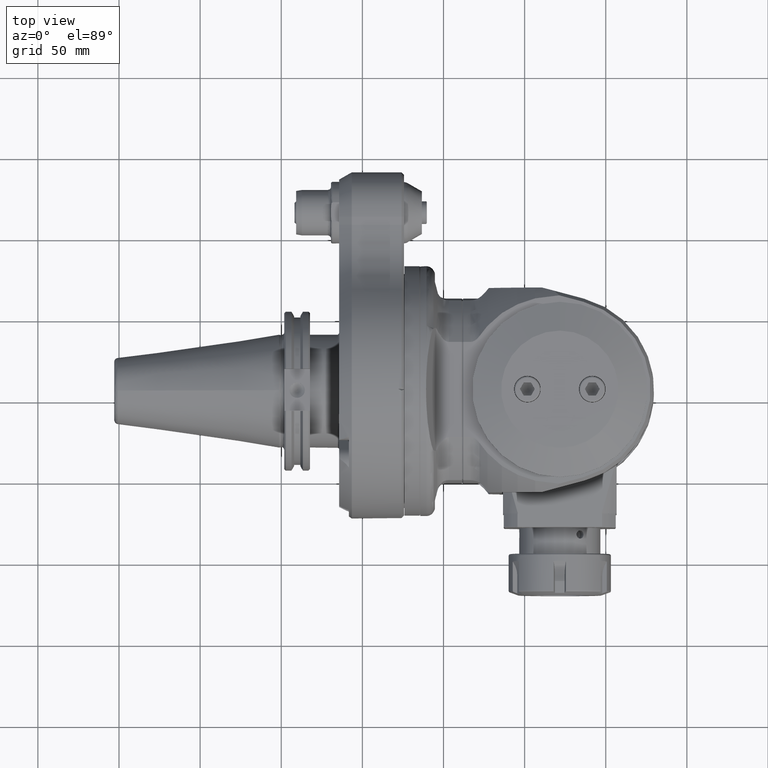
[diagram: clean part render]
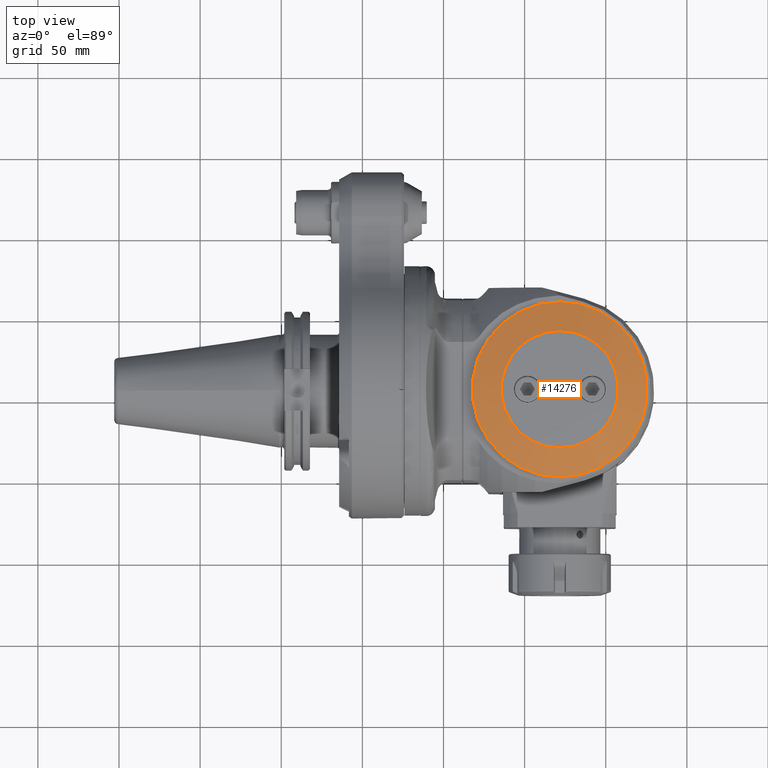
[diagram: same view with one face highlighted and labeled with its STEP entity id]
A machine part, top view. The second image highlights one B-rep face of the part: STEP entity #14276.
In plain terms, the highlighted conical surface has half-angle 70 deg.
Its self-contained STEP definition (entity closure, byte-faithful):
#1717=FACE_OUTER_BOUND('',#2642,.T.);
#2642=EDGE_LOOP('',(#11540,#11541,#11542,#11543));
#3552=LINE('',#24952,#4534);
#4534=VECTOR('',#18462,45.07069838677);
#5404=CIRCLE('',#15556,54.);
#5405=CIRCLE('',#15558,36.14139677354);
#6517=VERTEX_POINT('',#24947);
#6518=VERTEX_POINT('',#24951);
#8294=EDGE_CURVE('',#6517,#6517,#5404,.T.);
#8296=EDGE_CURVE('',#6517,#6518,#3552,.T.);
#8297=EDGE_CURVE('',#6518,#6518,#5405,.T.);
#11540=ORIENTED_EDGE('',*,*,#8294,.T.);
#11541=ORIENTED_EDGE('',*,*,#8296,.T.);
#11542=ORIENTED_EDGE('',*,*,#8297,.T.);
#11543=ORIENTED_EDGE('',*,*,#8296,.F.);
#13746=CONICAL_SURFACE('',#15557,45.07069838677,1.22173047639603);
#14276=ADVANCED_FACE('',(#1717),#13746,.T.);
#15556=AXIS2_PLACEMENT_3D('',#24948,#18457,#18458);
#15557=AXIS2_PLACEMENT_3D('',#24950,#18460,#18461);
#15558=AXIS2_PLACEMENT_3D('',#24953,#18463,#18464);
#18457=DIRECTION('center_axis',(1.,0.,0.));
#18458=DIRECTION('ref_axis',(0.,0.,-1.));
#18460=DIRECTION('center_axis',(-1.,0.,0.));
#18461=DIRECTION('ref_axis',(0.,0.,1.));
#18462=DIRECTION('',(0.342020143325669,1.15079156022785E-16,0.939692620785908));
#18463=DIRECTION('center_axis',(-1.,0.,0.));
#18464=DIRECTION('ref_axis',(0.,0.,1.));
#24947=CARTESIAN_POINT('',(62.,0.,-54.));
#24948=CARTESIAN_POINT('Origin',(62.,0.,0.));
#24950=CARTESIAN_POINT('Origin',(65.25,0.,0.));
#24951=CARTESIAN_POINT('',(68.5,0.,-36.14139677354));
#24952=CARTESIAN_POINT('',(65.25,-5.51956865146937E-15,-45.07069838677));
#24953=CARTESIAN_POINT('Origin',(68.5,0.,0.));